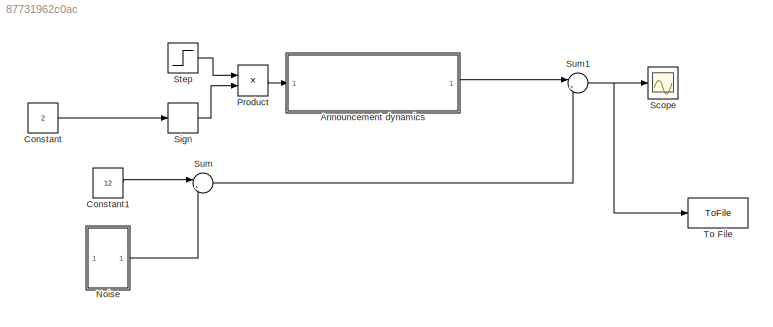
MODEL slx_87731962c0ac
KIND model
CONFIG AbsTol = auto
CONFIG EnableMultiTasking = off
CONFIG FixedStep = auto
CONFIG MaxStep = auto
CONFIG MinStep = auto
CONFIG RelTol = 1e-3
CONFIG SampleTimeConstraint = Unconstrained
CONFIG SolverName = VariableStepAuto
CONFIG StartTime = 0.0
CONFIG StopTime = 1.04
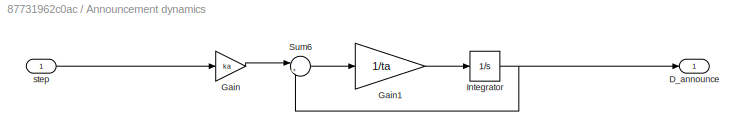
BLOCK [SubSystem] Announcement dynamics
BLOCK [Outport] Announcement dynamics/D_announce
BLOCK [Gain] Announcement dynamics/Gain
  Gain = ka
BLOCK [Gain] Announcement dynamics/Gain1
  Gain = 1/ta
BLOCK [Integrator] Announcement dynamics/Integrator
BLOCK [Sum] Announcement dynamics/Sum6
  Inputs = |+-
BLOCK [Inport] Announcement dynamics/step
BLOCK [Constant] Constant
  Value = 2
BLOCK [Constant] Constant1
  Value = 12
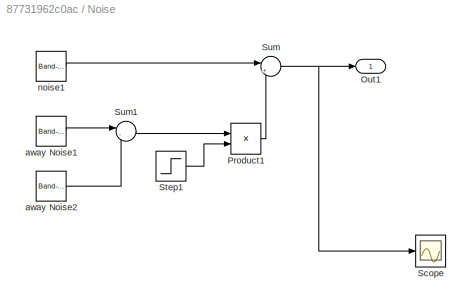
BLOCK [SubSystem] Noise
BLOCK [Outport] Noise/Out1
BLOCK [Product] Noise/Product1
BLOCK [Scope] Noise/Scope
  Floating = off
  NumInputPorts = 1
  ScopeSpecificationString = Simulink.scopes.TimeScopeBlockCfg('CurrentConfiguration', extmgr.ConfigurationSet(extmgr.Configuration('Core','General UI',true),extmgr.Configuration('Core','Source UI',true),extmgr.Configuration('Sources','WiredSimulink',true,'DataLoggingVariableName','ScopeData1'),extmgr.Configuration('Visuals','Time Domain',true,'SerializedDisplays',{struct('MinYLimReal','-0.09747','MaxYLimReal','0.11947','YLab...<+1388ch>
BLOCK [Step] Noise/Step1
  SampleTime = 0
  Time = 0.12
BLOCK [Sum] Noise/Sum
  Inputs = |++
BLOCK [Sum] Noise/Sum1
  Inputs = |-+
BLOCK [Reference] Noise/away Noise1  REF=simulink/Sources/Band-Limited
White Noise
  SourceBlock = simulink/Sources/Band-Limited\nWhite Noise
  SourceType = Band-Limited White Noise.
BLOCK [Reference] Noise/away Noise2  REF=simulink/Sources/Band-Limited
White Noise
  SourceBlock = simulink/Sources/Band-Limited\nWhite Noise
  SourceType = Band-Limited White Noise.
BLOCK [Reference] Noise/noise1  REF=simulink/Sources/Band-Limited
White Noise
  SourceBlock = simulink/Sources/Band-Limited\nWhite Noise
  SourceType = Band-Limited White Noise.
BLOCK [Product] Product
BLOCK [Scope] Scope
  Floating = off
  NumInputPorts = 1
  ScopeSpecificationString = Simulink.scopes.TimeScopeBlockCfg('CurrentConfiguration', extmgr.ConfigurationSet(extmgr.Configuration('Core','General UI',true),extmgr.Configuration('Core','Source UI',true),extmgr.Configuration('Sources','WiredSimulink',true),extmgr.Configuration('Visuals','Time Domain',true,'SerializedDisplays',{struct('MinYLimReal','9.72659','MaxYLimReal','12.36124','YLabelReal','','MinYLimMag','9.72659','MaxY...<+1355ch>
BLOCK [Signum] Sign
BLOCK [Step] Step
  SampleTime = 0
  Time = 0.1
BLOCK [Sum] Sum
  Inputs = |++
BLOCK [Sum] Sum1
  Inputs = |++
BLOCK [ToFile] To File
  Filename = ann.mat
  MatrixName = anno
LINE Announcement dynamics/Gain1:1 -> Announcement dynamics/Integrator:1
LINE Announcement dynamics/Gain:1 -> Announcement dynamics/Sum6:1
NET Announcement dynamics/Integrator:1 -> Announcement dynamics/D_announce:1, Announcement dynamics/Sum6:2
LINE Announcement dynamics/Sum6:1 -> Announcement dynamics/Gain1:1
LINE Announcement dynamics/step:1 -> Announcement dynamics/Gain:1
LINE Announcement dynamics:1 -> Sum1:1
LINE Constant1:1 -> Sum:1
LINE Constant:1 -> Sign:1
LINE Noise/Product1:1 -> Noise/Sum:2
LINE Noise/Step1:1 -> Noise/Product1:2
LINE Noise/Sum1:1 -> Noise/Product1:1
NET Noise/Sum:1 -> Noise/Out1:1, Noise/Scope:1
LINE Noise/away Noise1:1 -> Noise/Sum1:1
LINE Noise/away Noise2:1 -> Noise/Sum1:2
LINE Noise/noise1:1 -> Noise/Sum:1
LINE Noise:1 -> Sum:2
LINE Product:1 -> Announcement dynamics:1
LINE Sign:1 -> Product:2
LINE Step:1 -> Product:1
NET Sum1:1 -> Scope:1, To File:1
LINE Sum:1 -> Sum1:2
note: NET lines group one-source signal fan-out (src -> all destinations, sorted); 1:1 wires keep LINE
